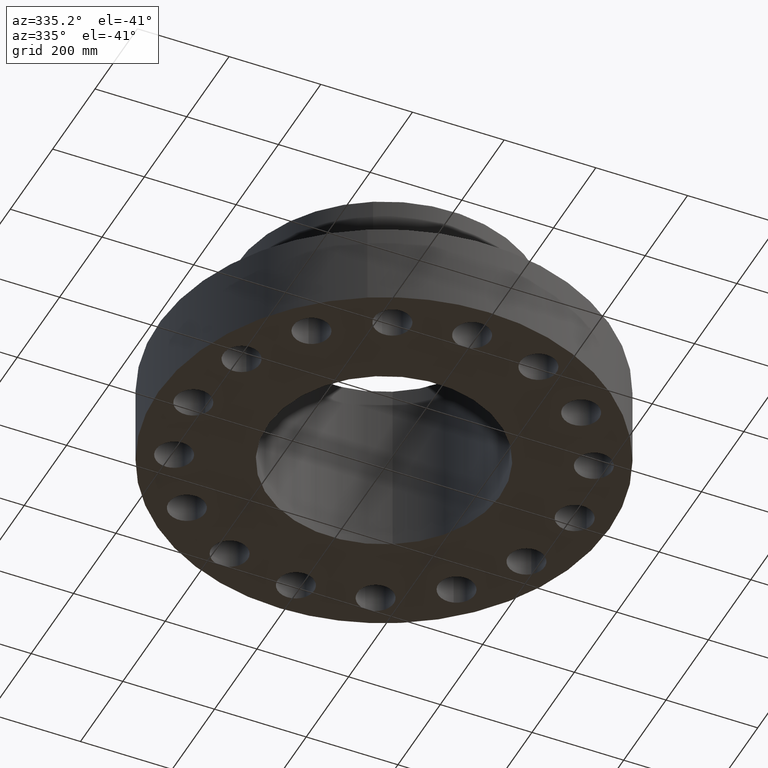
[diagram: clean part render]
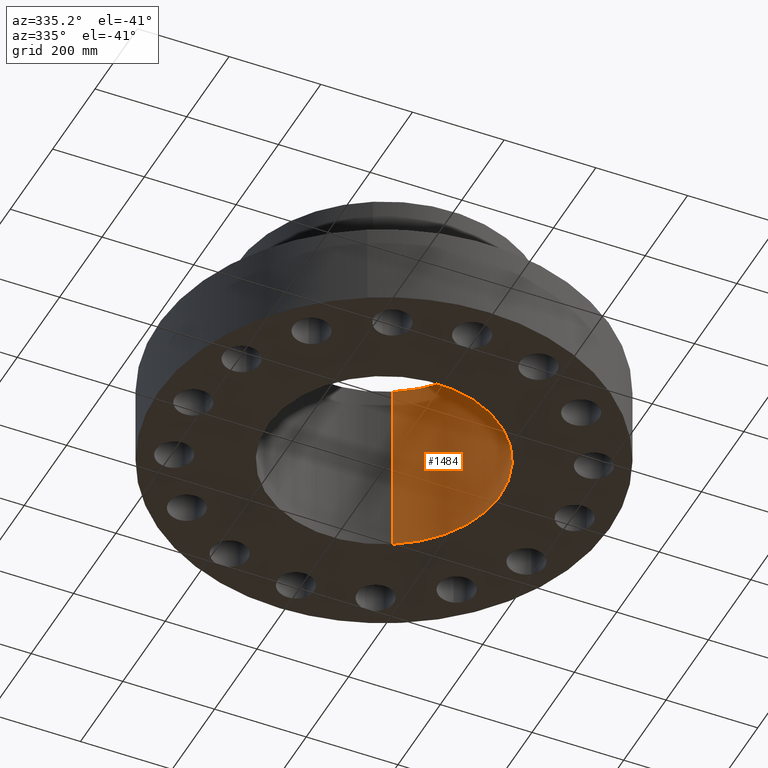
[diagram: same view with one face highlighted and labeled with its STEP entity id]
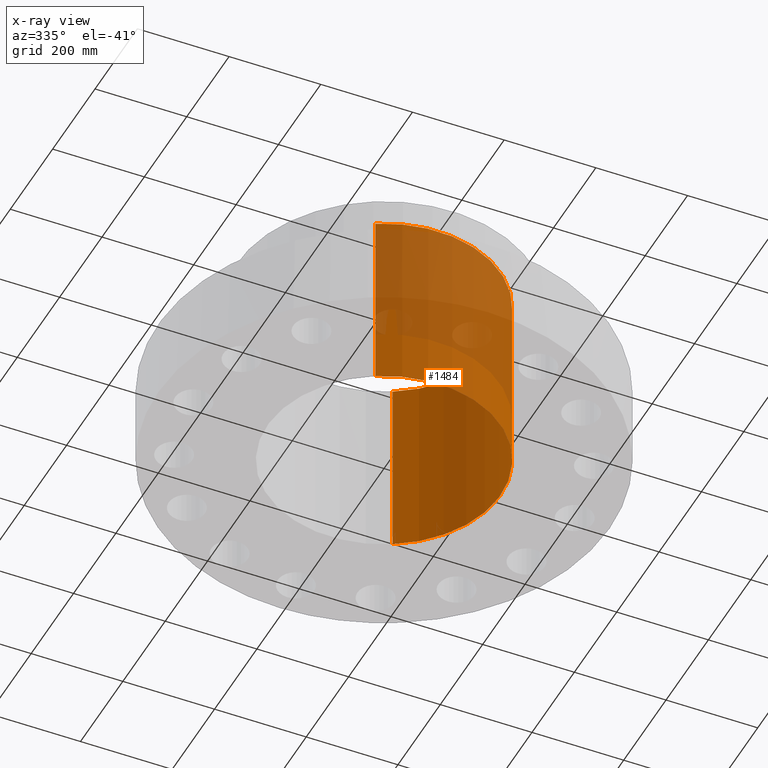
[diagram: x-ray of the same camera — body ghosted, the highlighted face saturated]
A machine part, auxiliary view. The second image highlights one B-rep face of the part: STEP entity #1484.
The next image is the same camera in x-ray: the body ghosted, the highlighted face saturated — about 41% of this face is hidden behind the body in this view.
In plain terms, the highlighted cylindrical surface (partial cylindrical patch) has radius 254 mm, axis along (0, 0, -1).
Its self-contained STEP definition (entity closure, byte-faithful):
#1267=AXIS2_PLACEMENT_3D('Circle Axis2P3D',#1265,#1266,$) ;
#1457=AXIS2_PLACEMENT_3D('Cylinder Axis2P3D',#1454,#1455,#1456) ;
#1461=AXIS2_PLACEMENT_3D('Circle Axis2P3D',#1459,#1460,$) ;
#1260=CARTESIAN_POINT('Vertex',(-4.79425538606,-8.77582561894,15.7500000001)) ;
#1262=CARTESIAN_POINT('Vertex',(4.79425538606,8.77582561894,15.7500000001)) ;
#1265=CARTESIAN_POINT('Axis2P3D Location',(0.,0.,15.7500000001)) ;
#1454=CARTESIAN_POINT('Axis2P3D Location',(0.,0.,7.75000000003)) ;
#1459=CARTESIAN_POINT('Axis2P3D Location',(0.,0.,0.)) ;
#1463=CARTESIAN_POINT('Vertex',(-4.79425538606,-8.77582561894,0.)) ;
#1465=CARTESIAN_POINT('Vertex',(4.79425538606,8.77582561894,0.)) ;
#1468=CARTESIAN_POINT('Line Origine',(-4.79425538606,-8.77582561894,7.87500000003)) ;
#1473=CARTESIAN_POINT('Line Origine',(4.79425538606,8.77582561894,7.87500000003)) ;
#1266=DIRECTION('Axis2P3D Direction',(0.,0.,-0.0393700787402)) ;
#1455=DIRECTION('Axis2P3D Direction',(0.,0.,-0.0393700787402)) ;
#1456=DIRECTION('Axis2P3D XDirection',(-0.0188750212049,-0.0345504945626,0.)) ;
#1460=DIRECTION('Axis2P3D Direction',(0.,0.,-0.0393700787402)) ;
#1469=DIRECTION('Vector Direction',(0.,0.,-0.0393700787402)) ;
#1474=DIRECTION('Vector Direction',(0.,0.,-0.0393700787402)) ;
#1470=VECTOR('Line Direction',#1469,0.0393700787402) ;
#1475=VECTOR('Line Direction',#1474,0.0393700787402) ;
#1479=ORIENTED_EDGE('',*,*,#1467,.F.) ;
#1480=ORIENTED_EDGE('',*,*,#1472,.F.) ;
#1481=ORIENTED_EDGE('',*,*,#1269,.F.) ;
#1482=ORIENTED_EDGE('',*,*,#1477,.T.) ;
#1484=ADVANCED_FACE('PartBody',(#1483),#1458,.F.) ;
#1268=CIRCLE('generated circle',#1267,10.) ;
#1462=CIRCLE('generated circle',#1461,10.) ;
#1458=CYLINDRICAL_SURFACE('generated cylinder',#1457,10.) ;
#1269=EDGE_CURVE('',#1263,#1261,#1268,.T.) ;
#1467=EDGE_CURVE('',#1464,#1466,#1462,.F.) ;
#1472=EDGE_CURVE('',#1261,#1464,#1471,.T.) ;
#1477=EDGE_CURVE('',#1263,#1466,#1476,.T.) ;
#1478=EDGE_LOOP('',(#1479,#1480,#1481,#1482)) ;
#1483=FACE_OUTER_BOUND('',#1478,.T.) ;
#1471=LINE('Line',#1468,#1470) ;
#1476=LINE('Line',#1473,#1475) ;
#1261=VERTEX_POINT('',#1260) ;
#1263=VERTEX_POINT('',#1262) ;
#1464=VERTEX_POINT('',#1463) ;
#1466=VERTEX_POINT('',#1465) ;